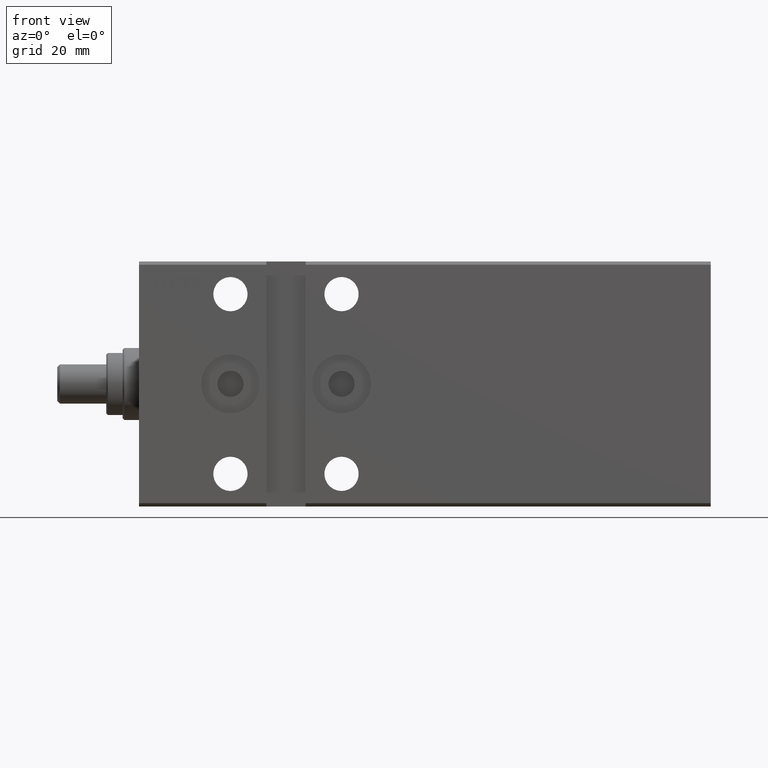
[diagram: clean part render]
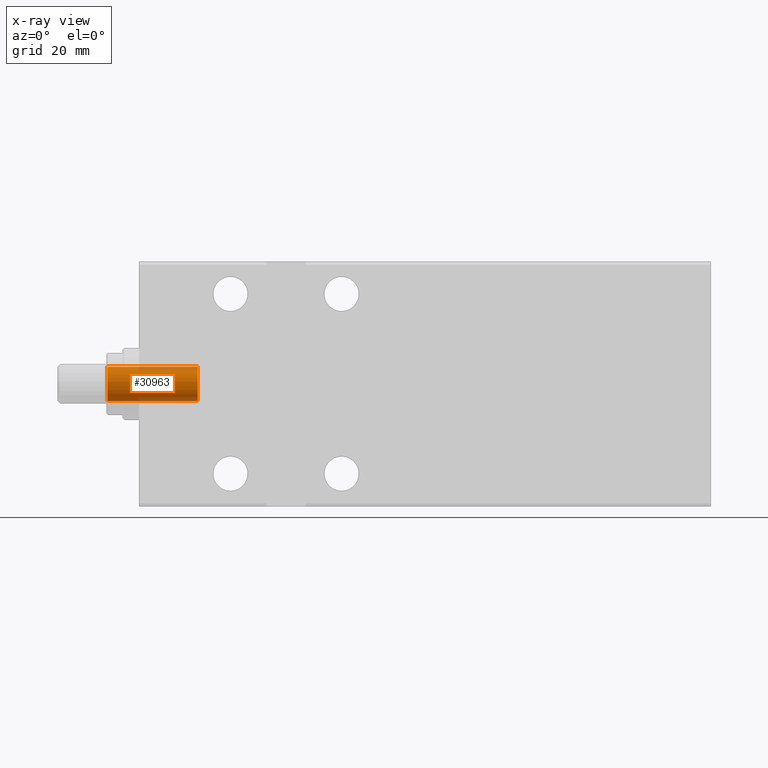
[diagram: x-ray — body ghosted, one internal face saturated and labeled with its STEP entity id]
A machine part, front view, then the same camera in x-ray: the body is ghosted and one INTERNAL B-rep face — a face not visible from any outside direction — is saturated and labeled: STEP entity #30963.
In plain terms, the highlighted cylindrical surface (edge-blend (fillet) strip) has radius 5.25 mm, axis along (-1, 0, 0).
Its self-contained STEP definition (entity closure, byte-faithful):
#1065 = DIRECTION ( 'NONE',  ( -0.000000000000000000, -0.000000000000000000, 1.000000000000000000 ) ) ;
#1974 = ORIENTED_EDGE ( 'NONE', *, *, #7834, .T. ) ;
#2233 = DIRECTION ( 'NONE',  ( 0.000000000000000000, 0.000000000000000000, 1.000000000000000000 ) ) ;
#3881 = CARTESIAN_POINT ( 'NONE',  ( 5.249999999999995559, 0.000000000000000000, 170.9000000000000057 ) ) ;
#6174 = CIRCLE ( 'NONE', #12387, 5.249999999999995559 ) ;
#7834 = EDGE_CURVE ( 'NONE', #33612, #35177, #6174, .T. ) ;
#7961 = VERTEX_POINT ( 'NONE', #33056 ) ;
#8809 = EDGE_CURVE ( 'NONE', #13961, #7961, #36529, .T. ) ;
#9197 = FACE_OUTER_BOUND ( 'NONE', #10425, .T. ) ;
#10425 = EDGE_LOOP ( 'NONE', ( #42108, #34482, #1974, #15049 ) ) ;
#10873 = EDGE_CURVE ( 'NONE', #13961, #33612, #24919, .T. ) ;
#11064 = VECTOR ( 'NONE', #14991, 1000.000000000000000 ) ;
#11369 = DIRECTION ( 'NONE',  ( -0.000000000000000000, -0.000000000000000000, 1.000000000000000000 ) ) ;
#12000 = DIRECTION ( 'NONE',  ( 1.000000000000000000, 0.000000000000000000, 0.000000000000000000 ) ) ;
#12387 = AXIS2_PLACEMENT_3D ( 'NONE', #31791, #2233, #35227 ) ;
#13961 = VERTEX_POINT ( 'NONE', #32418 ) ;
#14991 = DIRECTION ( 'NONE',  ( -0.000000000000000000, -0.000000000000000000, 1.000000000000000000 ) ) ;
#15049 = ORIENTED_EDGE ( 'NONE', *, *, #27556, .F. ) ;
#16396 = CARTESIAN_POINT ( 'NONE',  ( 5.249999999999995559, 0.000000000000000000, 171.2000000000000171 ) ) ;
#18222 = CARTESIAN_POINT ( 'NONE',  ( -5.249999999999995559, 6.429395695523600208E-16, 171.2000000000000171 ) ) ;
#18682 = CARTESIAN_POINT ( 'NONE',  ( 0.000000000000000000, 0.000000000000000000, 171.2000000000000171 ) ) ;
#24919 = LINE ( 'NONE', #18222, #11064 ) ;
#26120 = LINE ( 'NONE', #16396, #32066 ) ;
#26884 = AXIS2_PLACEMENT_3D ( 'NONE', #30339, #11369, #27331 ) ;
#27331 = DIRECTION ( 'NONE',  ( 1.000000000000000000, 0.000000000000000000, 0.000000000000000000 ) ) ;
#27556 = EDGE_CURVE ( 'NONE', #7961, #35177, #26120, .T. ) ;
#29031 = DIRECTION ( 'NONE',  ( -0.000000000000000000, -0.000000000000000000, 1.000000000000000000 ) ) ;
#30339 = CARTESIAN_POINT ( 'NONE',  ( 0.000000000000000000, 0.000000000000000000, 143.2000000000000171 ) ) ;
#30963 = ADVANCED_FACE ( 'NONE', ( #9197 ), #35504, .F. ) ;
#31791 = CARTESIAN_POINT ( 'NONE',  ( 0.000000000000000000, 0.000000000000000000, 170.9000000000000057 ) ) ;
#32066 = VECTOR ( 'NONE', #1065, 1000.000000000000000 ) ;
#32418 = CARTESIAN_POINT ( 'NONE',  ( -5.249999999999994671, 6.429395695523597250E-16, 143.2000000000000171 ) ) ;
#33056 = CARTESIAN_POINT ( 'NONE',  ( 5.249999999999994671, 0.000000000000000000, 143.2000000000000171 ) ) ;
#33521 = AXIS2_PLACEMENT_3D ( 'NONE', #18682, #29031, #12000 ) ;
#33612 = VERTEX_POINT ( 'NONE', #41859 ) ;
#34482 = ORIENTED_EDGE ( 'NONE', *, *, #10873, .T. ) ;
#35177 = VERTEX_POINT ( 'NONE', #3881 ) ;
#35227 = DIRECTION ( 'NONE',  ( 1.000000000000000000, 0.000000000000000000, 0.000000000000000000 ) ) ;
#35504 = CYLINDRICAL_SURFACE ( 'NONE', #33521, 5.249999999999995559 ) ;
#36529 = CIRCLE ( 'NONE', #26884, 5.249999999999994671 ) ;
#41859 = CARTESIAN_POINT ( 'NONE',  ( -5.249999999999995559, 6.429395695523600208E-16, 170.9000000000000057 ) ) ;
#42108 = ORIENTED_EDGE ( 'NONE', *, *, #8809, .F. ) ;